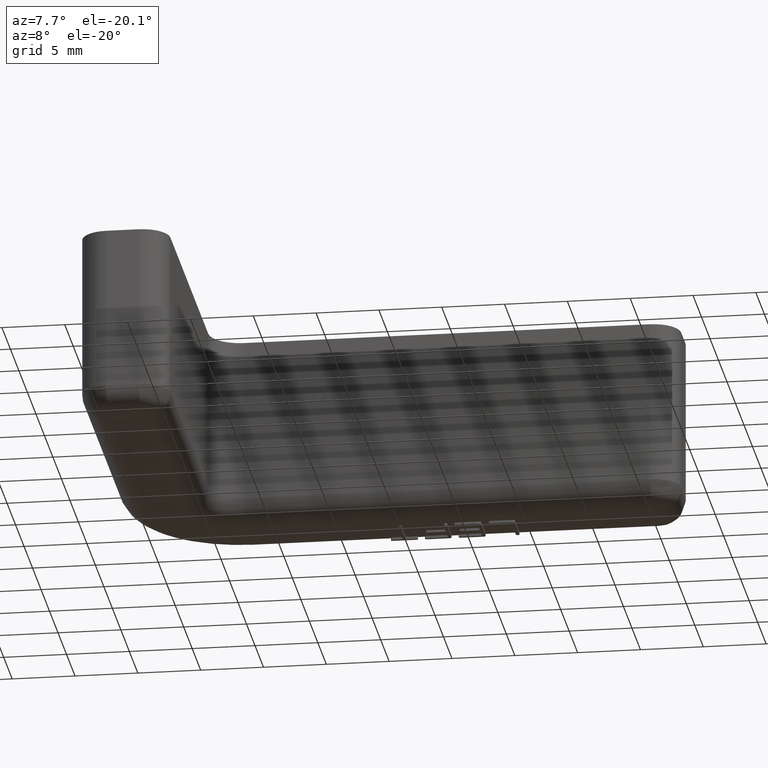
[diagram: clean part render]
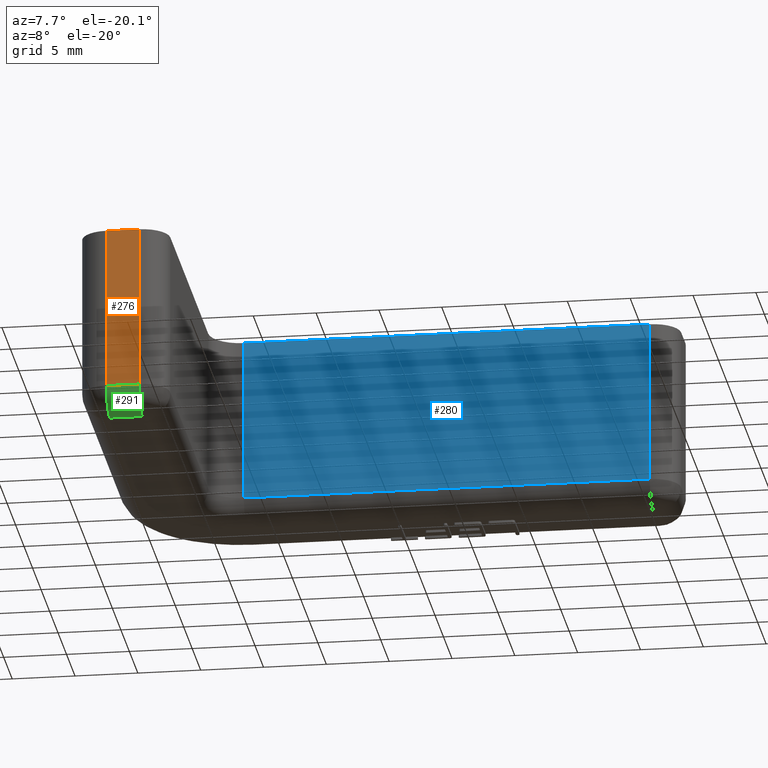
[diagram: same view with three faces highlighted in distinct colors, each labeled with its STEP entity id]
A machine part, auxiliary view with three faces highlighted in distinct colors.
Their STEP definitions:

[orange] entity #276 — the highlighted planar face has unit normal (-0, -1, 0).
#276 = ADVANCED_FACE( '', ( #344 ), #345, .T. );
#344 = FACE_OUTER_BOUND( '', #460, .T. );
#345 = PLANE( '', #461 );
#460 = EDGE_LOOP( '', ( #746, #747, #748, #749 ) );
#461 = AXIS2_PLACEMENT_3D( '', #750, #751, #752 );
#746 = ORIENTED_EDGE( '', *, *, #1213, .F. );
#747 = ORIENTED_EDGE( '', *, *, #1214, .T. );
#748 = ORIENTED_EDGE( '', *, *, #1215, .T. );
#749 = ORIENTED_EDGE( '', *, *, #1169, .F. );
#750 = CARTESIAN_POINT( '', ( 0.200000000000008, -32.0000000000000, -15.0000000000000 ) );
#751 = DIRECTION( '', ( -8.15862134795342E-018, -1.00000000000000, 0.000000000000000 ) );
#752 = DIRECTION( '', ( -1.00000000000000, 8.15862134795342E-018, 0.000000000000000 ) );
#1169 = EDGE_CURVE( '', #1298, #1300, #1301, .T. );
#1213 = EDGE_CURVE( '', #1378, #1298, #1380, .T. );
#1214 = EDGE_CURVE( '', #1378, #1381, #1382, .T. );
#1215 = EDGE_CURVE( '', #1381, #1300, #1383, .T. );
#1298 = VERTEX_POINT( '', #1505 );
#1300 = VERTEX_POINT( '', #1507 );
#1301 = LINE( '', #1508, #1509 );
#1378 = VERTEX_POINT( '', #1611 );
#1380 = LINE( '', #1613, #1614 );
#1381 = VERTEX_POINT( '', #1615 );
#1382 = LINE( '', #1616, #1617 );
#1383 = LINE( '', #1618, #1619 );
#1505 = CARTESIAN_POINT( '', ( 0.200000000000008, -32.0000000000000, 0.000000000000000 ) );
#1507 = CARTESIAN_POINT( '', ( 2.80000000000001, -32.0000000000000, 0.000000000000000 ) );
#1508 = CARTESIAN_POINT( '', ( 0.200000000000008, -32.0000000000000, 0.000000000000000 ) );
#1509 = VECTOR( '', #1993, 1000.00000000000 );
#1611 = CARTESIAN_POINT( '', ( 0.200000000000008, -32.0000000000000, -13.0000000000000 ) );
#1613 = CARTESIAN_POINT( '', ( 0.200000000000008, -32.0000000000000, -15.0000000000000 ) );
#1614 = VECTOR( '', #2073, 1000.00000000000 );
#1615 = CARTESIAN_POINT( '', ( 2.80000000000001, -32.0000000000000, -13.0000000000000 ) );
#1616 = CARTESIAN_POINT( '', ( 2.80000000000001, -32.0000000000000, -13.0000000000000 ) );
#1617 = VECTOR( '', #2074, 1000.00000000000 );
#1618 = CARTESIAN_POINT( '', ( 2.80000000000001, -32.0000000000000, -15.0000000000000 ) );
#1619 = VECTOR( '', #2075, 1000.00000000000 );
#1993 = DIRECTION( '', ( 1.00000000000000, -8.15862134795342E-018, 0.000000000000000 ) );
#2073 = DIRECTION( '', ( 0.000000000000000, 0.000000000000000, 1.00000000000000 ) );
#2074 = DIRECTION( '', ( 1.00000000000000, -8.15862134795342E-018, 0.000000000000000 ) );
#2075 = DIRECTION( '', ( 0.000000000000000, 0.000000000000000, 1.00000000000000 ) );

[blue] entity #280 — the highlighted planar face has unit normal (0, -1, 0).
#280 = ADVANCED_FACE( '', ( #352 ), #353, .T. );
#352 = FACE_OUTER_BOUND( '', #468, .T. );
#353 = PLANE( '', #469 );
#468 = EDGE_LOOP( '', ( #774, #775, #776, #777 ) );
#469 = AXIS2_PLACEMENT_3D( '', #778, #779, #780 );
#774 = ORIENTED_EDGE( '', *, *, #1221, .F. );
#775 = ORIENTED_EDGE( '', *, *, #1222, .T. );
#776 = ORIENTED_EDGE( '', *, *, #1223, .T. );
#777 = ORIENTED_EDGE( '', *, *, #1173, .F. );
#778 = CARTESIAN_POINT( '', ( 7.49999999999999, -5.00000000000000, -15.0000000000000 ) );
#779 = DIRECTION( '', ( 5.14996031930615E-019, -1.00000000000000, 0.000000000000000 ) );
#780 = DIRECTION( '', ( -1.00000000000000, -5.14996031930615E-019, 0.000000000000000 ) );
#1173 = EDGE_CURVE( '', #1306, #1308, #1309, .T. );
#1221 = EDGE_CURVE( '', #1390, #1306, #1392, .T. );
#1222 = EDGE_CURVE( '', #1390, #1393, #1394, .T. );
#1223 = EDGE_CURVE( '', #1393, #1308, #1395, .T. );
#1306 = VERTEX_POINT( '', #1515 );
#1308 = VERTEX_POINT( '', #1517 );
#1309 = LINE( '', #1518, #1519 );
#1390 = VERTEX_POINT( '', #1629 );
#1392 = LINE( '', #1631, #1632 );
#1393 = VERTEX_POINT( '', #1633 );
#1394 = LINE( '', #1634, #1635 );
#1395 = LINE( '', #1636, #1637 );
#1515 = CARTESIAN_POINT( '', ( 7.50000000000000, -5.00000000000001, 0.000000000000000 ) );
#1517 = CARTESIAN_POINT( '', ( 39.8000000000000, -5.00000000000000, 0.000000000000000 ) );
#1518 = CARTESIAN_POINT( '', ( 7.49999999999999, -5.00000000000000, 0.000000000000000 ) );
#1519 = VECTOR( '', #2001, 1000.00000000000 );
#1629 = CARTESIAN_POINT( '', ( 7.50000000000000, -5.00000000000001, -13.0000000000000 ) );
#1631 = CARTESIAN_POINT( '', ( 7.50000000000000, -5.00000000000001, -15.0000000000000 ) );
#1632 = VECTOR( '', #2085, 1000.00000000000 );
#1633 = CARTESIAN_POINT( '', ( 39.8000000000000, -5.00000000000000, -13.0000000000000 ) );
#1634 = CARTESIAN_POINT( '', ( 39.8000000000000, -5.00000000000000, -13.0000000000000 ) );
#1635 = VECTOR( '', #2086, 1000.00000000000 );
#1636 = CARTESIAN_POINT( '', ( 39.8000000000000, -5.00000000000000, -15.0000000000000 ) );
#1637 = VECTOR( '', #2087, 1000.00000000000 );
#2001 = DIRECTION( '', ( 1.00000000000000, 5.14996031930615E-019, 0.000000000000000 ) );
#2085 = DIRECTION( '', ( 0.000000000000000, 0.000000000000000, 1.00000000000000 ) );
#2086 = DIRECTION( '', ( 1.00000000000000, 5.14996031930615E-019, 0.000000000000000 ) );
#2087 = DIRECTION( '', ( 0.000000000000000, 0.000000000000000, 1.00000000000000 ) );

[green] entity #291 — the highlighted cylindrical surface (edge-blend (fillet) strip) has radius 2 mm, axis along (1, -0, 0).
#291 = ADVANCED_FACE( '', ( #374 ), #375, .T. );
#374 = FACE_OUTER_BOUND( '', #556, .T. );
#375 = CYLINDRICAL_SURFACE( '', #557, 2.00000000000000 );
#556 = EDGE_LOOP( '', ( #850, #851, #852, #853 ) );
#557 = AXIS2_PLACEMENT_3D( '', #854, #855, #856 );
#850 = ORIENTED_EDGE( '', *, *, #1247, .T. );
#851 = ORIENTED_EDGE( '', *, *, #1214, .F. );
#852 = ORIENTED_EDGE( '', *, *, #1245, .F. );
#853 = ORIENTED_EDGE( '', *, *, #1236, .F. );
#854 = CARTESIAN_POINT( '', ( 0.200000000000008, -30.0000000000000, -13.0000000000000 ) );
#855 = DIRECTION( '', ( 1.00000000000000, -8.15862134795342E-018, 0.000000000000000 ) );
#856 = DIRECTION( '', ( -8.15862134795342E-018, -1.00000000000000, 0.000000000000000 ) );
#1214 = EDGE_CURVE( '', #1378, #1381, #1382, .T. );
#1236 = EDGE_CURVE( '', #1417, #1419, #1420, .F. );
#1245 = EDGE_CURVE( '', #1419, #1378, #1430, .T. );
#1247 = EDGE_CURVE( '', #1417, #1381, #1432, .T. );
#1378 = VERTEX_POINT( '', #1611 );
#1381 = VERTEX_POINT( '', #1615 );
#1382 = LINE( '', #1616, #1617 );
#1417 = VERTEX_POINT( '', #1665 );
#1419 = VERTEX_POINT( '', #1667 );
#1420 = LINE( '', #1668, #1669 );
#1430 = CIRCLE( '', #1680, 2.00000000000000 );
#1432 = CIRCLE( '', #1682, 2.00000000000000 );
#1611 = CARTESIAN_POINT( '', ( 0.200000000000008, -32.0000000000000, -13.0000000000000 ) );
#1615 = CARTESIAN_POINT( '', ( 2.80000000000001, -32.0000000000000, -13.0000000000000 ) );
#1616 = CARTESIAN_POINT( '', ( 2.80000000000001, -32.0000000000000, -13.0000000000000 ) );
#1617 = VECTOR( '', #2074, 1000.00000000000 );
#1665 = CARTESIAN_POINT( '', ( 2.80000000000001, -30.0000000000000, -15.0000000000000 ) );
#1667 = CARTESIAN_POINT( '', ( 0.200000000000008, -30.0000000000000, -15.0000000000000 ) );
#1668 = CARTESIAN_POINT( '', ( 0.200000000000008, -30.0000000000000, -15.0000000000000 ) );
#1669 = VECTOR( '', #2112, 1000.00000000000 );
#1680 = AXIS2_PLACEMENT_3D( '', #2135, #2136, #2137 );
#1682 = AXIS2_PLACEMENT_3D( '', #2141, #2142, #2143 );
#2074 = DIRECTION( '', ( 1.00000000000000, -8.15862134795342E-018, 0.000000000000000 ) );
#2112 = DIRECTION( '', ( 1.00000000000000, -8.15862134795342E-018, 0.000000000000000 ) );
#2135 = CARTESIAN_POINT( '', ( 0.200000000000008, -30.0000000000000, -13.0000000000000 ) );
#2136 = DIRECTION( '', ( -1.00000000000000, 6.53231808922509E-018, 0.000000000000000 ) );
#2137 = DIRECTION( '', ( -6.53231808922509E-018, -1.00000000000000, 0.000000000000000 ) );
#2141 = CARTESIAN_POINT( '', ( 2.80000000000001, -30.0000000000000, -13.0000000000000 ) );
#2142 = DIRECTION( '', ( -1.00000000000000, -3.31383683514763E-015, 0.000000000000000 ) );
#2143 = DIRECTION( '', ( 3.31383683514763E-015, -1.00000000000000, 0.000000000000000 ) );